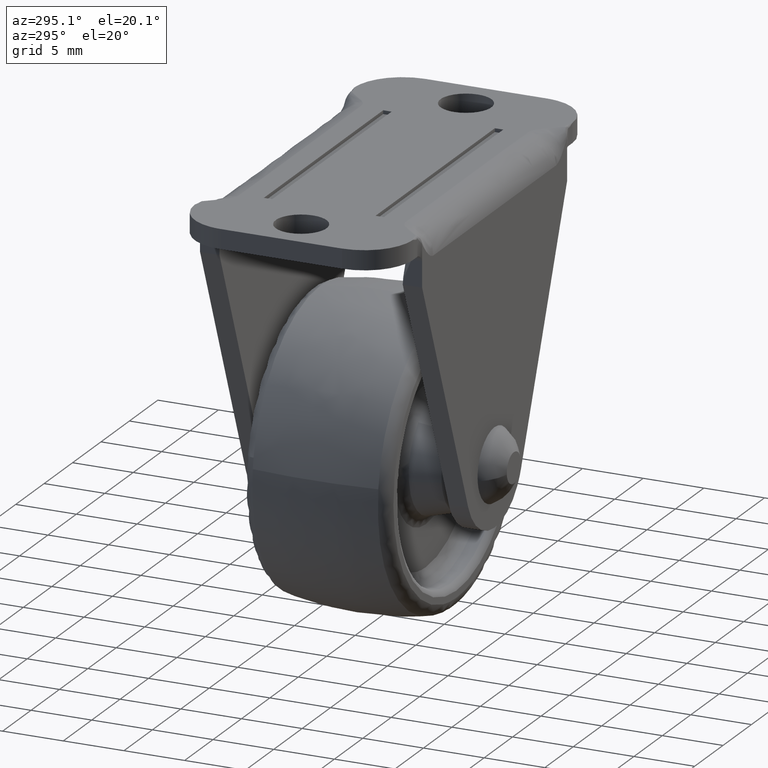
[diagram: clean part render]
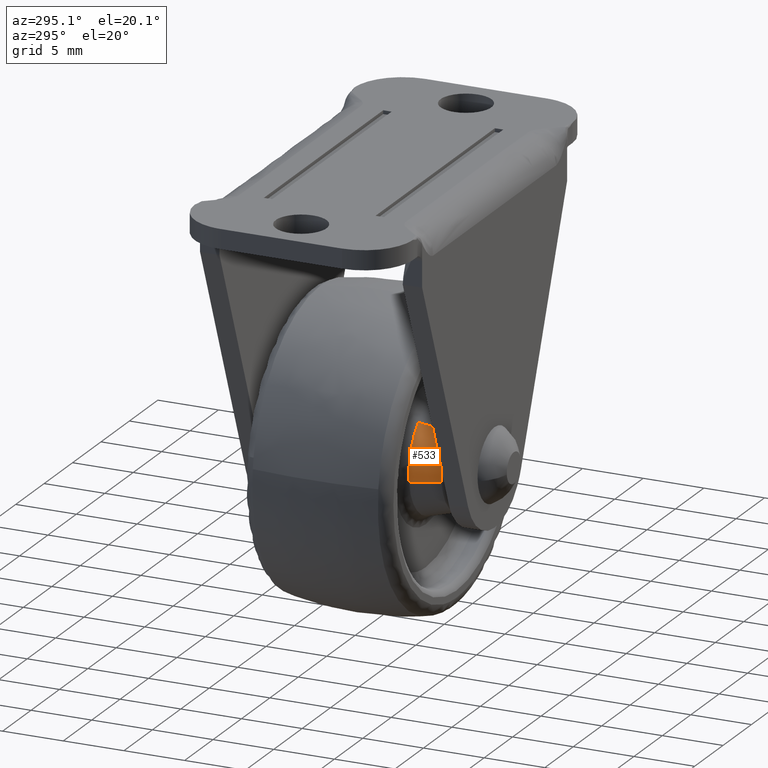
[diagram: same view with one face highlighted and labeled with its STEP entity id]
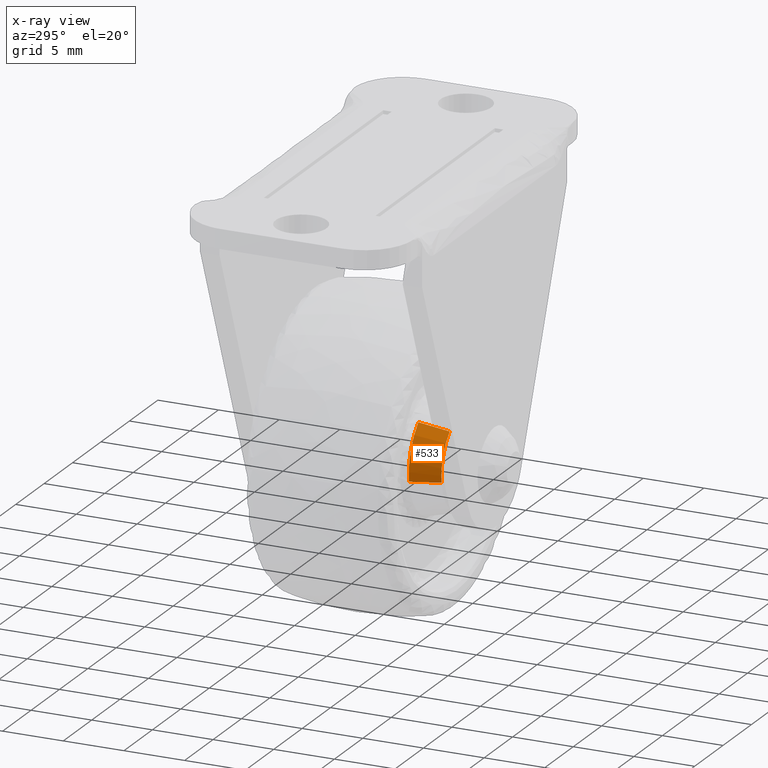
[diagram: x-ray of the same camera — body ghosted, the highlighted face saturated]
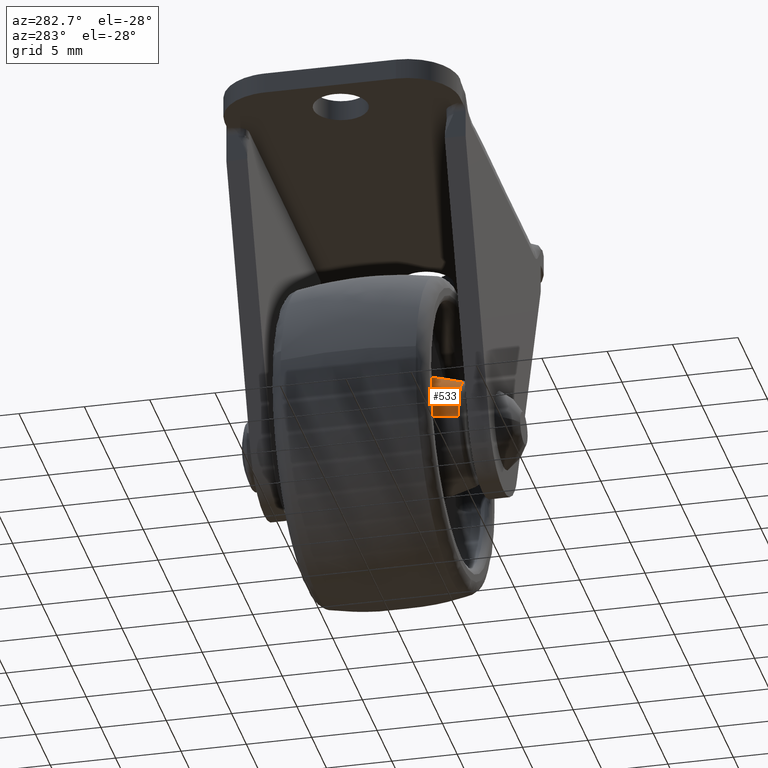
[diagram: same view with one face highlighted and labeled with its STEP entity id]
A machine part, auxiliary view. The second image highlights one B-rep face of the part: STEP entity #533.
The next image is the same camera in x-ray: the body ghosted, the highlighted face saturated — about 0% of this face is hidden behind the body in this view.
A second angle (auxiliary view) of the same face is appended — the face is thin or edge-on in the first view.
In plain terms, the highlighted face is a freeform B-spline surface patch.
Its self-contained STEP definition (entity closure, byte-faithful):
#316=CARTESIAN_POINT('',(-2.926424154343900,-4.241006818191447,3.579365482089383));
#317=VERTEX_POINT('',#316);
#331=CARTESIAN_POINT('',(-2.521041789824320,-6.629496590874695,3.083534540954494));
#332=VERTEX_POINT('',#331);
#333=CARTESIAN_POINT('',(-2.521041789824320,-6.629496590874695,3.083534540954494));
#334=CARTESIAN_POINT('',(-2.926424154343900,-4.241006818191447,3.579365482089383));
#335=QUASI_UNIFORM_CURVE('',1,(#333,#334),.UNSPECIFIED.,.F.,.U.);
#336=EDGE_CURVE('',#332,#317,#335,.T.);
#400=CARTESIAN_POINT('',(-3.948868623166912,-6.629496590839203,-0.519878416888058));
#401=VERTEX_POINT('',#400);
#415=CARTESIAN_POINT('',(-4.583844888132047,-4.241006818316475,-0.603474628096221));
#416=VERTEX_POINT('',#415);
#417=CARTESIAN_POINT('',(-3.948868623166912,-6.629496590839203,-0.519878416888058));
#418=CARTESIAN_POINT('',(-4.583844888132047,-4.241006818316475,-0.603474628096221));
#419=QUASI_UNIFORM_CURVE('',1,(#417,#418),.UNSPECIFIED.,.F.,.U.);
#420=EDGE_CURVE('',#401,#416,#419,.T.);
#485=CARTESIAN_POINT('',(-3.932994216509333,-6.689208835279658,-0.517788511600236));
#486=CARTESIAN_POINT('',(-4.221376236201158,-6.689208835279658,1.672690400509948));
#487=CARTESIAN_POINT('',(-2.510907230694977,-6.689208835279658,3.071138767409367));
#488=CARTESIAN_POINT('',(-4.600116154992337,-4.179801767640313,-0.605616780996869));
#489=CARTESIAN_POINT('',(-4.937414079821498,-4.179801767640313,1.956415318737898));
#490=CARTESIAN_POINT('',(-2.936812077455450,-4.179801767640313,3.592071149985521));
#498=(BOUNDED_SURFACE()B_SPLINE_SURFACE(2,1,((#485,#488),(#486,#489),(#487,#490)),.UNSPECIFIED.,.F.,.F.,.U.)B_SPLINE_SURFACE_WITH_KNOTS((3,3),(2,2),(0.0,4.854691329842019),(0.0,2.598054910279771),.UNSPECIFIED.)GEOMETRIC_REPRESENTATION_ITEM()RATIONAL_B_SPLINE_SURFACE(((1.0,1.0),(0.812548339959390,0.812548339959390),(0.865034804770761,0.865034804770761)))REPRESENTATION_ITEM('')SURFACE());
#499=CARTESIAN_POINT('',(-2.926424154343900,-4.241006818191448,3.579365482089383));
#500=CARTESIAN_POINT('',(-4.623398704978979,-4.241006818320059,2.191949936141136));
#501=CARTESIAN_POINT('',(-4.623398704978980,-4.241006818320059,-8.061993E-016));
#502=CARTESIAN_POINT('',(-4.623398704978980,-4.241006818320059,-0.303033561120149));
#503=CARTESIAN_POINT('',(-4.583844888132047,-4.241006818316475,-0.603474628096221));
#511=(BOUNDED_CURVE()B_SPLINE_CURVE(2,(#499,#500,#501,#502,#503),.UNSPECIFIED.,.F.,.U.)B_SPLINE_CURVE_WITH_KNOTS((3,2,3),(0.609894318729768,0.750000000000000,0.772560615557315),.UNSPECIFIED.)CURVE()GEOMETRIC_REPRESENTATION_ITEM()RATIONAL_B_SPLINE_CURVE((0.855692041641024,0.835855984154841,1.0,0.973568594764020,0.951907659705389))REPRESENTATION_ITEM(''));
#512=EDGE_CURVE('',#317,#416,#511,.T.);
#513=ORIENTED_EDGE('',*,*,#512,.T.);
#514=ORIENTED_EDGE('',*,*,#420,.F.);
#515=CARTESIAN_POINT('',(-2.521041789824319,-6.629496590874695,3.083534540954495));
#516=CARTESIAN_POINT('',(-3.982943254852726,-6.629496590839841,1.888310476829626));
#517=CARTESIAN_POINT('',(-3.982943254852725,-6.629496590839840,-8.061993E-016));
#518=CARTESIAN_POINT('',(-3.982943254852724,-6.629496590839840,-0.261055893123266));
#519=CARTESIAN_POINT('',(-3.948868623166912,-6.629496590839203,-0.519878416888058));
#527=(BOUNDED_CURVE()B_SPLINE_CURVE(2,(#515,#516,#517,#518,#519),.UNSPECIFIED.,.F.,.U.)B_SPLINE_CURVE_WITH_KNOTS((3,2,3),(0.609894318729176,0.750000000000000,0.772560615556146),.UNSPECIFIED.)CURVE()GEOMETRIC_REPRESENTATION_ITEM()RATIONAL_B_SPLINE_CURVE((0.855692041641191,0.835855984154147,1.0,0.973568594765390,0.951907659707634))REPRESENTATION_ITEM(''));
#528=EDGE_CURVE('',#332,#401,#527,.T.);
#529=ORIENTED_EDGE('',*,*,#528,.F.);
#530=ORIENTED_EDGE('',*,*,#336,.T.);
#531=EDGE_LOOP('',(#513,#514,#529,#530));
#532=FACE_OUTER_BOUND('',#531,.T.);
#533=ADVANCED_FACE('',(#532),#498,.T.);